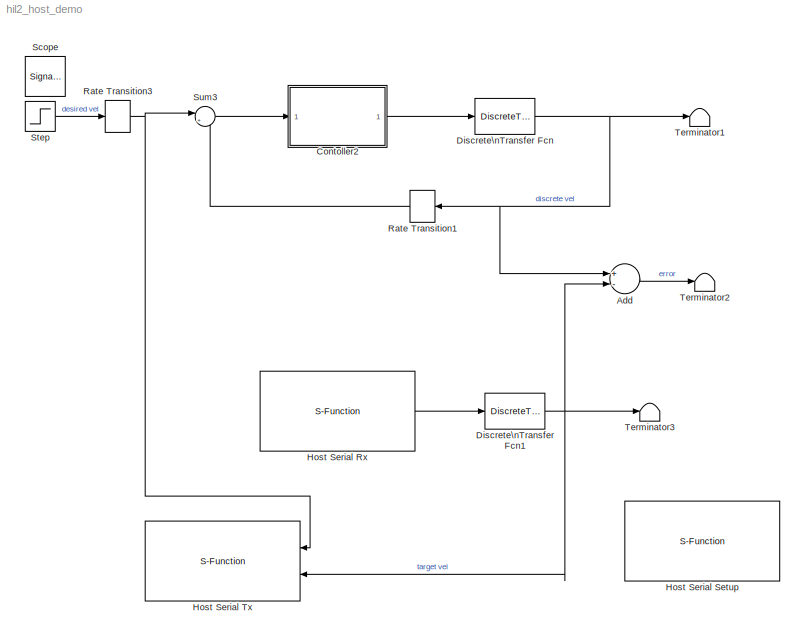
MODEL hil2_host_demo
KIND model
BLOCK [Sum] Add
  InputSameDT = off
  Inputs = +-
  OutDataType = fixdt(1, 16)
  OutDataTypeMode = Inherit via internal rule
  OutDataTypeStr = Inherit: Inherit via internal rule
  OutScaling = 2^-10
  Ports = [2, 1]
  SaturateOnIntegerOverflow = off
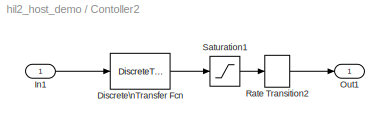
BLOCK [SubSystem] Contoller2
  FunctionWithSeparateData = off
  MaskHideContents = off
  MinAlgLoopOccurrences = off
  Opaque = off
  Ports = [1, 1]
  PropExecContextOutsideSubsystem = off
  RTWSystemCode = Auto
  RequestExecContextInheritance = off
BLOCK [DiscreteTransferFcn] Contoller2/Discrete\nTransfer Fcn
  Denominator = [1 -1]
  Numerator = [0.2 -0.195]
  SampleTime = -1
BLOCK [Inport] Contoller2/In1
  IconDisplay = Port number
BLOCK [Outport] Contoller2/Out1
  IconDisplay = Port number
BLOCK [RateTransition] Contoller2/Rate Transition2
BLOCK [Saturate] Contoller2/Saturation1
  LinearizeAsGain = off
  LowerLimit = -100
  OutDataType = fixdt(1, 16)
  OutScaling = 2^0
  UpperLimit = 100
  ZeroCross = off
BLOCK [DiscreteTransferFcn] Discrete\nTransfer Fcn
  Denominator = [1 -0.9908]
  Numerator = 0.3359
  SampleTime = 0.005
BLOCK [DiscreteTransferFcn] Discrete\nTransfer Fcn1
  Denominator = [1 -0.9908]
  Numerator = 0.3359
  SampleTime = 0.005
BLOCK [S-Function] Host Serial Rx
  EnableBusSupport = off
  FunctionName = amg_usbconverter_n_serial
  MaskCallbackString = amg_usbconverter_n_serial_callback('configuration');|amg_usbconverter_n_serial_callback('port');|amg_usbconverter_n_serial_callback('baudrate');||||amg_usbconverter_n_serial_callback('flowcontrol');|amg_usbconverter_n_serial_callback('advanceoptions');|||amg_usbconverter_n_serial_callback('transfer');|amg_usbconverter_n_serial_callback('enableinitial');|amg_usbconverter_n_serial_callback('initialv...<+869ch>
  MaskDescription = Enable initial value (Closed loop HIL test):\n - Checked: The block will return a initial value (constant) at first time step.\n - Unchecked: Normal operation, the block waiting for matched packet data before return value.\n
  MaskDisplay = text(0.05, 0.5, 'Port: COM22\\nPacket: Binary\\nTransfer: Blocking\\nTs (sec): 0.005','ver','middle','hor','left');port_label('output', 1,'double');
  MaskEnableString = on,on,on,on,on,on,off,on,off,off,on,on,on,on,on,on,on,on,on,on,on,on,on,on,on,on,on,on,on,on,on,on,on,on,on,on,off,off
  MaskHelp = web(fullfile(waijungdocroot,'amg_usbconverter_n_uart.htm'), '-browser')
  MaskIconFrame = on
  MaskIconOpaque = on
  MaskIconRotate = none
  MaskIconUnits = normalized
  MaskInitialization = amg_usbconverter_n_serial_callback('init');
  MaskPortRotate = default
  MaskPromptString = Configuration|Port|Baud rate (bps)|Data bits|Parity|Stop bit|Hardware flow control|Advance options|Rx buffer size (bytes)|Tx buffer size (bytes)|Transfer|Enable initial value  (Closed loop HIL test)|Initial values|Wait time-out (Seconds)|Packet mode|Binary header (example: '7E 7E')|Binary terminator (example: '03 03')|Number of data port, type DOUBLE|Number of data port, type SINGLE|Number of data...<+412ch>
  MaskSelfModifiable = on
  MaskStyleString = popup(Setup|Tx|Rx),popup(COM3|COM22|COM23),edit,popup(8),popup(None),popup(1|1.5|2),popup(None|RTS|CTS|RTS/CTS),checkbox,popup(16|32|64|128|256|512|1024|2048),popup(16|32|64|128|256|512|1024|2048),popup(Blocking|Non-Blocking),checkbox,edit,edit,popup(Ascii|Binary),edit,edit,edit,edit,edit,edit,edit,edit,edit,edit,edit,popup(CR (0x0D - \"\\r\")|LF (0x0A - \"\\n\")|CRLF (0x0D 0x0A - \"<path>")),pop...<+128ch>
  MaskTabNameString = ,,,,,,,,,,,,,,,,,,,,,,,,,,,,,,,,,,,,,
  MaskToolTipString = on,on,on,on,on,on,on,on,on,on,on,on,on,on,on,on,on,on,on,on,on,on,on,on,on,on,on,on,on,on,on,on,on,on,on,on,on,on
  MaskTunableValueString = off,off,off,on,off,off,off,off,off,off,off,off,off,off,off,off,off,off,off,off,off,off,off,off,off,off,off,off,off,off,off,off,off,off,off,off,off,off
  MaskType = amg_usbconverter_n_serial
  MaskValueString = Rx|COM22|115200|8|None|1|None|off|2048|2048|Blocking|off|[]|5|Binary|'7E 7E'|'03 03'|1|0|0|0|0|0|0|0|'%d,%f'|LF (0x0A - \"\\n\")|LF (0x0A - \"\\n\")|[0]|[1  0]|[2 126  126]|[2 3  3]|8|['%d,%f' uint8(10)]|[1 10]|0.005||HostSerialRx
  MaskVarAliasString = ,,,,,,,,,,,,,,,,,,,,,,,,,,,,,,,,,,,,,
  MaskVariables = configuration=&1;port=&2;baudrate=@3;databits=@4;parity=&5;stopbit=&6;flowcontrol=&7;advanceoptions=@8;rxbuffersize=@9;txbuffersize=@10;transfer=&11;enableinitial=&12;initialvalues=@13;timeout=@14;packetmode=&15;binheader=&16;binterminator=&17;porttype_double=@18;porttype_single=@19;porttype_int8=@20;porttype_uint8=@21;porttype_int16=@22;porttype_uint16=@23;porttype_int32=@24;porttype_uint32=@25;a...<+231ch>
  MaskVisibilityString = off,on,off,off,off,off,off,off,off,off,on,on,off,on,on,on,on,on,on,on,on,on,on,on,on,off,off,off,off,off,off,off,off,off,off,on,off,off
  Parameters = configuration,port,transfer,baudrate,stopbit,inputtype,outputtype,binheaderarray,binterminatorarray,asciiheader,asciiterminator,bindatalength,packetmode,timeout,sampletime,initialvalues,blockid
  Ports = [0, 1]
  Priority = 1
BLOCK [S-Function] Host Serial Setup
  EnableBusSupport = off
  FunctionName = amg_usbconverter_n_serial
  MaskCallbackString = amg_usbconverter_n_serial_callback('configuration');|amg_usbconverter_n_serial_callback('port');|amg_usbconverter_n_serial_callback('baudrate');||||amg_usbconverter_n_serial_callback('flowcontrol');|amg_usbconverter_n_serial_callback('advanceoptions');|||amg_usbconverter_n_serial_callback('transfer');||amg_usbconverter_n_serial_callback('packetmode');|amg_usbconverter_n_serial_callback('binheader'...<+763ch>
  MaskDisplay = text(0.5, 0.5, 'Port: COM22\\nBaud (Bps): 115200\\nFrame: 8-None-1','ver','middle','hor','center');
  MaskEnableString = on,on,on,on,on,on,off,on,off,off,on,on,on,on,on,on,on,on,on,on,on,on,on,on,on,on,on,on,on,on,on,on,on,on,off,off
  MaskHelp = web(fullfile(waijungdocroot,'amg_usbconverter_n_uart.htm'), '-browser')
  MaskIconFrame = on
  MaskIconOpaque = on
  MaskIconRotate = none
  MaskIconUnits = normalized
  MaskInitialization = amg_usbconverter_n_serial_callback('init');
  MaskPortRotate = default
  MaskPromptString = Configuration|Port|Baud rate (bps)|Data bits|Parity|Stop bit|Hardware flow control|Advance options|Rx buffer size (bytes)|Tx buffer size (bytes)|Transfer|Wait time-out (Seconds)|Packet mode|Binary header (example: '7E 7E')|Binary terminator (example: '03 03')|Number of data port, type DOUBLE|Number of data port, type SINGLE|Number of data port, type INT8|Number of data port, type UINT8|Number of d...<+352ch>
  MaskSelfModifiable = on
  MaskStyleString = popup(Setup|Tx|Rx),popup(COM3|COM22|COM23),edit,popup(8),popup(None),popup(1|1.5|2),popup(None|RTS|CTS|RTS/CTS),checkbox,popup(16|32|64|128|256|512|1024|2048),popup(16|32|64|128|256|512|1024|2048),popup(Blocking|Non-Blocking),edit,popup(Ascii|Binary),edit,edit,edit,edit,edit,edit,edit,edit,edit,edit,edit,popup(CR (0x0D - \"\\r\")|LF (0x0A - \"\\n\")|CRLF (0x0D 0x0A - \"<path>")),popup(CR (0x0D - ...<+114ch>
  MaskTabNameString = ,,,,,,,,,,,,,,,,,,,,,,,,,,,,,,,,,,,
  MaskToolTipString = on,on,on,on,on,on,on,on,on,on,on,on,on,on,on,on,on,on,on,on,on,on,on,on,on,on,on,on,on,on,on,on,on,on,on,on
  MaskTunableValueString = off,off,off,on,off,off,off,off,off,off,off,off,off,off,off,off,off,off,off,off,off,off,off,off,off,off,off,off,off,off,off,off,off,off,off,off
  MaskType = amg_usbconverter_n_serial
  MaskValueString = Setup|COM22|115200|8|None|1|None|off|2048|2048|Blocking|5|Binary|'7E 7E'|'03 03'|1|0|1|0|0|0|0|0|'%d,%f'|CRLF (0x0D 0x0A - \"<path>")|CR (0x0D - \"\\r\")|[0]|[0]|[2 126  126]|[2 3  3]|0|''|[0]|inf||HostSerialSetup
  MaskVarAliasString = ,,,,,,,,,,,,,,,,,,,,,,,,,,,,,,,,,,,
  MaskVariables = configuration=&1;port=&2;baudrate=@3;databits=@4;parity=&5;stopbit=&6;flowcontrol=&7;advanceoptions=@8;rxbuffersize=@9;txbuffersize=@10;transfer=&11;timeout=@12;packetmode=&13;binheader=&14;binterminator=&15;porttype_double=@16;porttype_single=@17;porttype_int8=@18;porttype_uint8=@19;porttype_int16=@20;porttype_uint16=@21;porttype_int32=@22;porttype_uint32=@23;asciiformat=@24;rx_asciiterminator=&2...<+195ch>
  MaskVisibilityString = off,on,on,on,on,on,on,on,off,off,off,off,off,off,off,off,off,off,off,off,off,off,off,off,off,off,off,off,off,off,off,off,off,off,off,off
  Parameters = configuration,port,transfer,baudrate,stopbit,inputtype,outputtype,binheaderarray,binterminatorarray,asciiheader,asciiterminator,bindatalength,packetmode,timeout,sampletime,sampletimestr,blockid
  Ports = []
  Priority = 1
BLOCK [S-Function] Host Serial Tx
  EnableBusSupport = off
  FunctionName = amg_usbconverter_n_serial
  MaskCallbackString = amg_usbconverter_n_serial_callback('configuration');|amg_usbconverter_n_serial_callback('port');|amg_usbconverter_n_serial_callback('baudrate');||||amg_usbconverter_n_serial_callback('flowcontrol');|amg_usbconverter_n_serial_callback('advanceoptions');|||amg_usbconverter_n_serial_callback('transfer');||amg_usbconverter_n_serial_callback('packetmode');|amg_usbconverter_n_serial_callback('binheader'...<+763ch>
  MaskDisplay = text(0.05, 0.5, 'Port: COM22\\nPacket: Binary\\nTransfer: Blocking\\nTs (sec): 0.005','ver','middle','hor','left');port_label('input', 1,'double');port_label('input', 2,'double');
  MaskEnableString = on,on,on,on,on,on,off,on,off,off,off,on,on,on,on,on,on,on,on,on,on,on,on,on,on,on,on,on,on,on,on,on,on,on,off,off
  MaskHelp = web(fullfile(waijungdocroot,'amg_usbconverter_n_uart.htm'), '-browser')
  MaskIconFrame = on
  MaskIconOpaque = on
  MaskIconRotate = none
  MaskIconUnits = normalized
  MaskInitialization = amg_usbconverter_n_serial_callback('init');
  MaskPortRotate = default
  MaskPromptString = Configuration|Port|Baud rate (bps)|Data bits|Parity|Stop bit|Hardware flow control|Advance options|Rx buffer size (bytes)|Tx buffer size (bytes)|Transfer|Wait time-out (Seconds)|Packet mode|Binary header (example: '7E 7E')|Binary terminator (example: '03 03')|Number of data port, type DOUBLE|Number of data port, type SINGLE|Number of data port, type INT8|Number of data port, type UINT8|Number of d...<+352ch>
  MaskSelfModifiable = on
  MaskStyleString = popup(Setup|Tx|Rx),popup(COM3|COM22|COM23),edit,popup(8),popup(None),popup(1|1.5|2),popup(None|RTS|CTS|RTS/CTS),checkbox,popup(16|32|64|128|256|512|1024|2048),popup(16|32|64|128|256|512|1024|2048),popup(Blocking|Non-Blocking),edit,popup(Ascii|Binary),edit,edit,edit,edit,edit,edit,edit,edit,edit,edit,edit,popup(CR (0x0D - \"\\r\")|LF (0x0A - \"\\n\")|CRLF (0x0D 0x0A - \"<path>")),popup(CR (0x0D - ...<+114ch>
  MaskTabNameString = ,,,,,,,,,,,,,,,,,,,,,,,,,,,,,,,,,,,
  MaskToolTipString = on,on,on,on,on,on,on,on,on,on,on,on,on,on,on,on,on,on,on,on,on,on,on,on,on,on,on,on,on,on,on,on,on,on,on,on
  MaskTunableValueString = off,off,off,on,off,off,off,off,off,off,off,off,off,off,off,off,off,off,off,off,off,off,off,off,off,off,off,off,off,off,off,off,off,off,off,off
  MaskType = amg_usbconverter_n_serial
  MaskValueString = Tx|COM22|115200|8|None|1|None|off|2048|2048|Blocking|5|Binary|'7E 7E'|'03 03'|2|0|0|0|0|0|0|0|'%d,%f'|CRLF (0x0D 0x0A - \"<path>")|LF (0x0A - \"\\n\")|[2  0 0]|[0]|[2 126  126]|[2 3  3]|16|['%d,%f' uint8(10)]|[1 10]|.005||HostSerialTx
  MaskVarAliasString = ,,,,,,,,,,,,,,,,,,,,,,,,,,,,,,,,,,,
  MaskVariables = configuration=&1;port=&2;baudrate=@3;databits=@4;parity=&5;stopbit=&6;flowcontrol=&7;advanceoptions=@8;rxbuffersize=@9;txbuffersize=@10;transfer=&11;timeout=@12;packetmode=&13;binheader=&14;binterminator=&15;porttype_double=@16;porttype_single=@17;porttype_int8=@18;porttype_uint8=@19;porttype_int16=@20;porttype_uint16=@21;porttype_int32=@22;porttype_uint32=@23;asciiformat=@24;rx_asciiterminator=&2...<+195ch>
  MaskVisibilityString = off,on,off,off,off,off,off,off,off,off,on,on,on,on,on,on,on,on,on,on,on,on,on,off,off,off,off,off,off,off,off,off,off,on,off,off
  Parameters = configuration,port,transfer,baudrate,stopbit,inputtype,outputtype,binheaderarray,binterminatorarray,asciiheader,asciiterminator,bindatalength,packetmode,timeout,sampletime,sampletimestr,blockid
  Ports = [2]
  Priority = 1
BLOCK [RateTransition] Rate Transition1
  OutPortSampleTime = 0.005
BLOCK [RateTransition] Rate Transition3
  OutPortSampleTime = 0.005
BLOCK [SignalViewerScope] Scope
  DataFormat = Array
  IOType = viewer
  LegendLocations = 441.3333      559.6667           112      51.66667\n509.3333           317            79      20.33333
  MaxDataPoints = 7500
  NumInputPorts = 2
  Ports = []
  RefreshTime = 0.035000
  ShowDataMarkers = off
  ShowLegends = on
  YMax = 800~35
  YMin = 0~-65
BLOCK [Step] Step
  After = 700
  SampleTime = 0
BLOCK [Sum] Sum3
  IconShape = round
  InputSameDT = off
  Inputs = |+-
  OutDataType = fixdt(1, 16)
  OutDataTypeMode = Inherit via internal rule
  OutDataTypeStr = Inherit: Inherit via internal rule
  OutScaling = 2^0
  Ports = [2, 1]
  SaturateOnIntegerOverflow = off
BLOCK [Terminator] Terminator1
BLOCK [Terminator] Terminator2
BLOCK [Terminator] Terminator3
LINE Add:1 -> Terminator2:1
LINE Contoller2/Discrete\nTransfer Fcn:1 -> Contoller2/Saturation1:1
LINE Contoller2/In1:1 -> Contoller2/Discrete\nTransfer Fcn:1
LINE Contoller2/Rate Transition2:1 -> Contoller2/Out1:1
LINE Contoller2/Saturation1:1 -> Contoller2/Rate Transition2:1
LINE Contoller2:1 -> Discrete\nTransfer Fcn:1
NET Discrete\nTransfer Fcn1:1 -> Add:2, Host Serial Tx:2, Terminator3:1
NET Discrete\nTransfer Fcn:1 -> Add:1, Rate Transition1:1, Terminator1:1
LINE Host Serial Rx:1 -> Discrete\nTransfer Fcn1:1
LINE Rate Transition1:1 -> Sum3:2
NET Rate Transition3:1 -> Host Serial Tx:1, Sum3:1
LINE Step:1 -> Rate Transition3:1
LINE Sum3:1 -> Contoller2:1
note: NET lines group one-source signal fan-out (src -> all destinations, sorted); 1:1 wires keep LINE
note: 5 file-system paths scrubbed to <path> (not preserved elsewhere — flat text is the only slx artifact)
